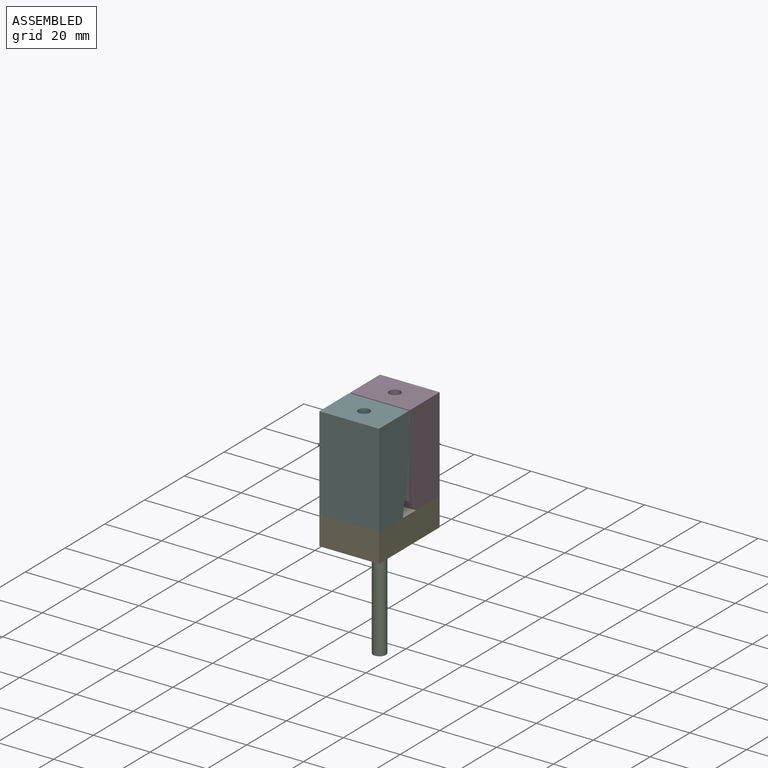
[diagram: assembled view]
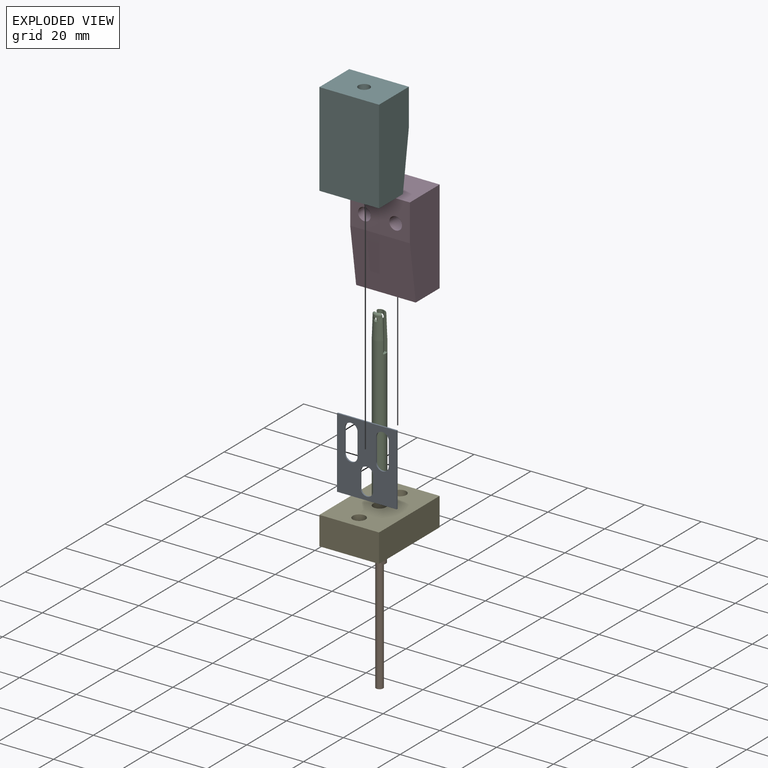
[diagram: exploded view]
GUIDED TOUR — MATED ASSEMBLY (Onshape document f2d12b0c220a4db9c009e8b9, AutoMate assembly f2d12b0c220a4db9c009e8b9_0a5ecf5ad049f95425f89506_d854b8d1486b102a5190bcf5_default)

This assembly has 6 components, labeled P0..P5 below (a component is one placed occurrence of a part; the same part can appear more than once), held together by 5 mates. A mate is a constraint between two components; its type names the relative motion it leaves free:
  FASTENED — locks the two components together rigidly (no relative motion),
  SLIDER — leaves translation along the listed axis free.
Axis/direction vectors are unit vectors and 'through' points are millimeter coordinates, both in the assembly's world frame.

MATES
  1. SLIDER "Gleiter 1": P2 <-> P4, axis (0.000, 0.000, 1.000) through (73.81, 47.07, 35.10) mm
  2. FASTENED "Fest 1": P3 <-> P4, direction (0.000, 0.000, -1.000) through (73.81, 57.32, 23.49) mm
  3. FASTENED "Fest 2": P3 <-> P0, direction (0.000, -1.000, 0.000) through (68.31, 47.32, 48.49) mm
  4. SLIDER "Gleiter 2": P1 <-> P2, axis (0.000, 0.000, -1.000) through (73.81, 47.07, -17.71) mm
  5. FASTENED "Fest 3": P5 <-> P4, direction (0.000, 0.000, -1.000) through (73.81, 36.82, 23.49) mm

ASSEMBLY ORDER
  1. P4 — the base component [order heuristic]
  2. P2 — core [order heuristic]
  3. P1 — core [order heuristic]
  4. P0 [order verified]
  5. P3 [order verified]
  6. P5 [order verified]
Order-tag legend:
  [order verified] — this step's position reverses a verified removal order: the component was checked to insert without passing through the ones already placed.
  [order heuristic] — the first 3 components form the assembly's core: parts whose collision-free extraction could not be verified, listed in mate-graph order.

Of the 6 components, 1 carries the full construction recipe — the FeatureScript program that regenerates the part's solid from scratch; the rest are supplied as boundary geometry only.
Each toured component is shown spotlighted twice — in the assembled view, then in the exploded view, where a leader line traces a displaced component back to its assembled socket (saturated green if recipe-attached, orange if geometry-only; every other component desaturated gray) — followed by its recipe or geometry summary and the mates that hold it.
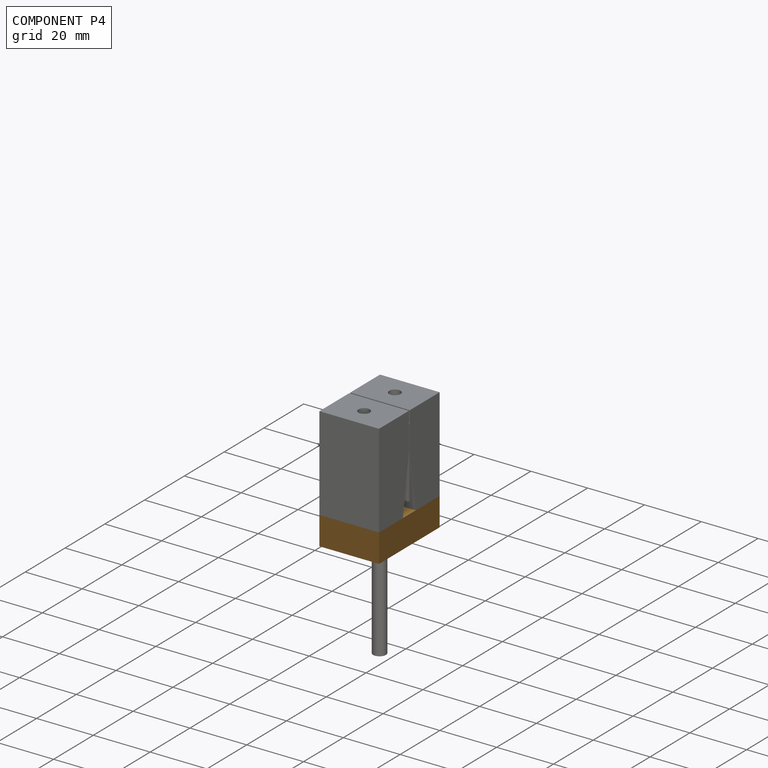
[diagram: component P4 — assembled]
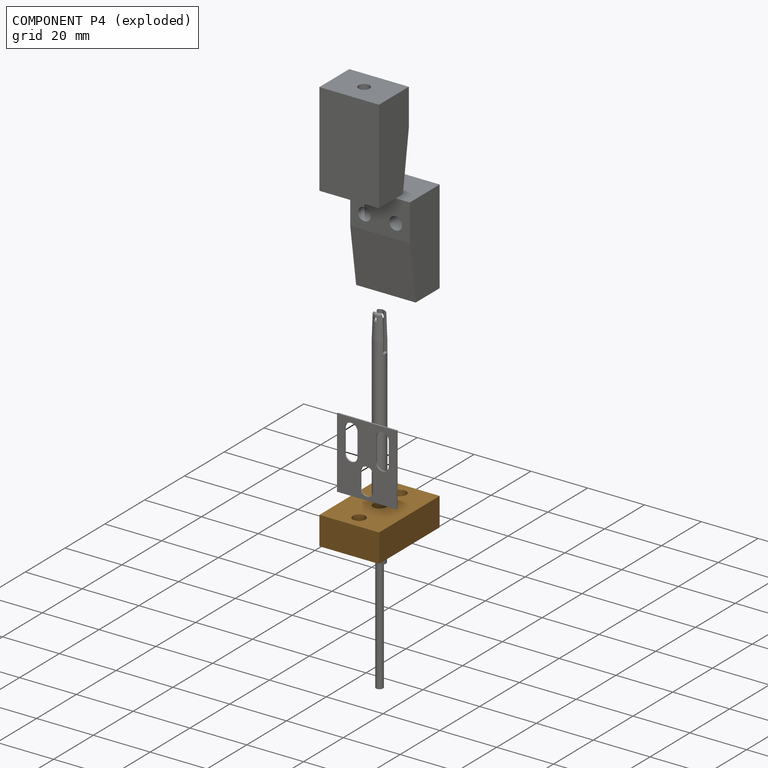
[diagram: component P4 — exploded]
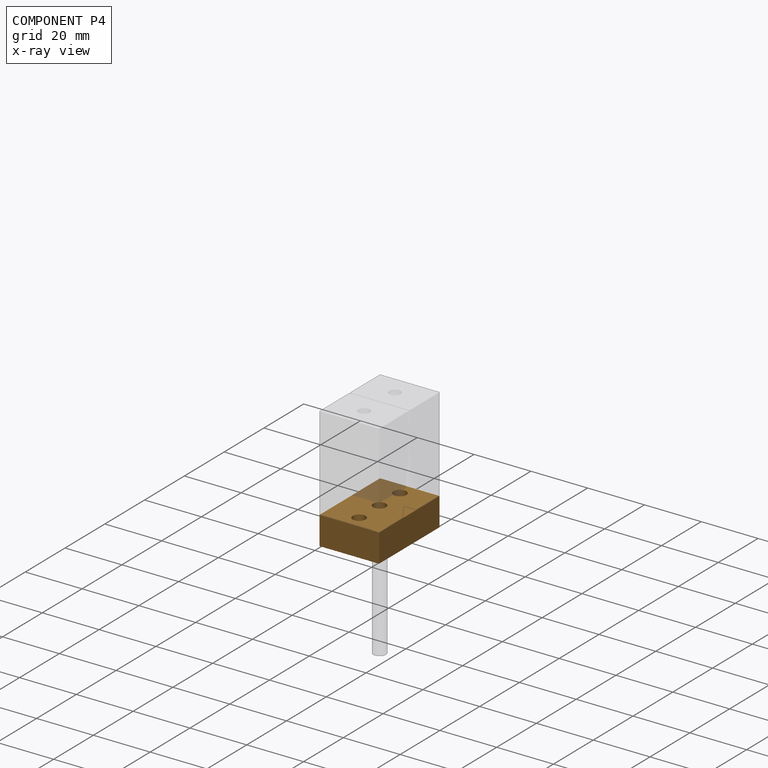
[diagram: component P4 — x-ray view]
COMPONENT P4 — geometry summary (no construction recipe available for this part):
  bounding box: 30.5 x 21.0 x 10.0 mm
  B-rep topology: 1 solid, 14 faces, 58 edges
  volume: 5589 mm^3 (87% of its bounding box)
  symmetry: 2-fold rotationally symmetric about the z axis; mirror-symmetric across its x mid-plane, y mid-plane
Held by: SLIDER mate "Gleiter 1" to P2; FASTENED mate "Fest 1" to P3; FASTENED mate "Fest 3" to P5.
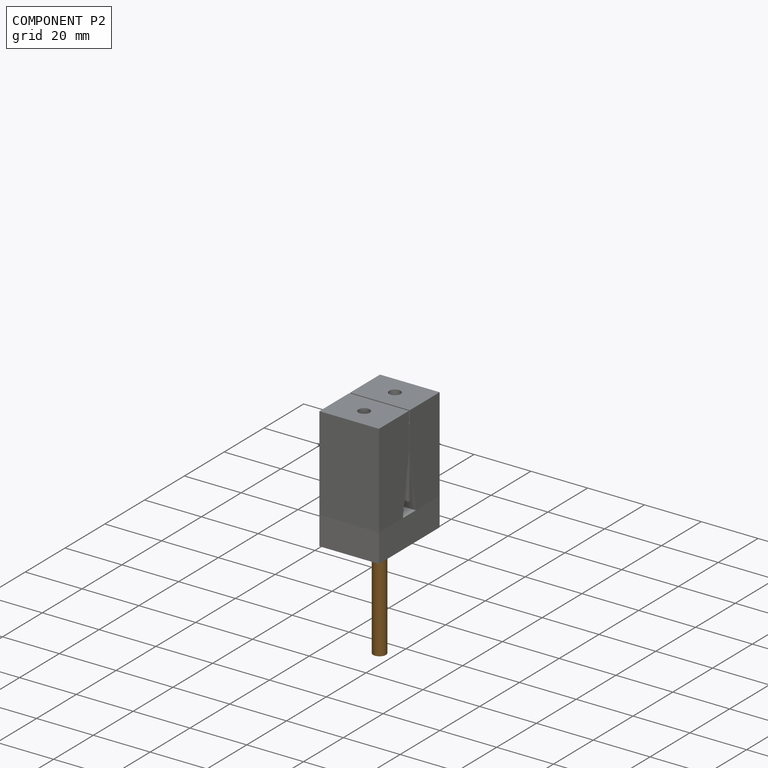
[diagram: component P2 — assembled]
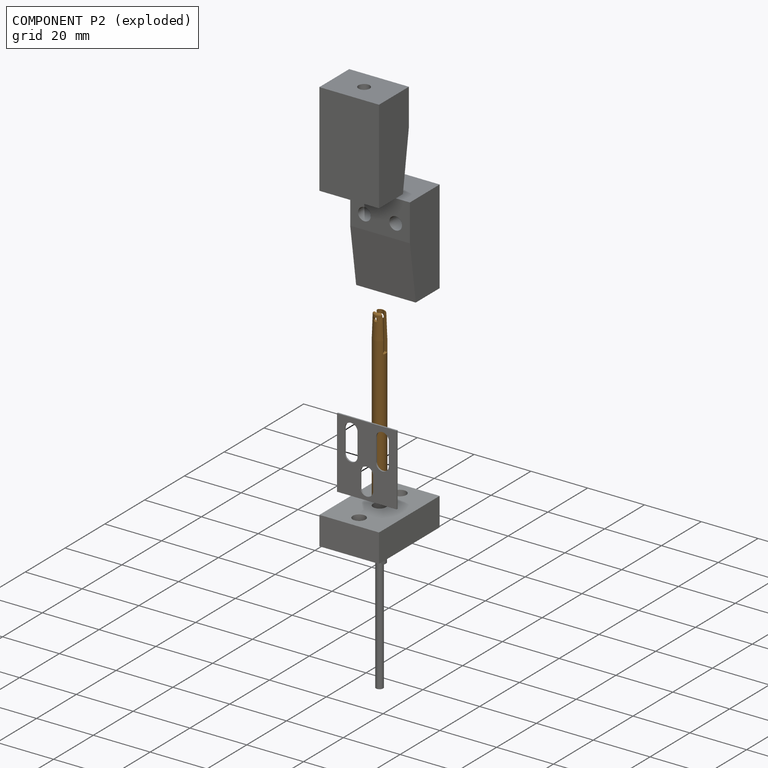
[diagram: component P2 — exploded]
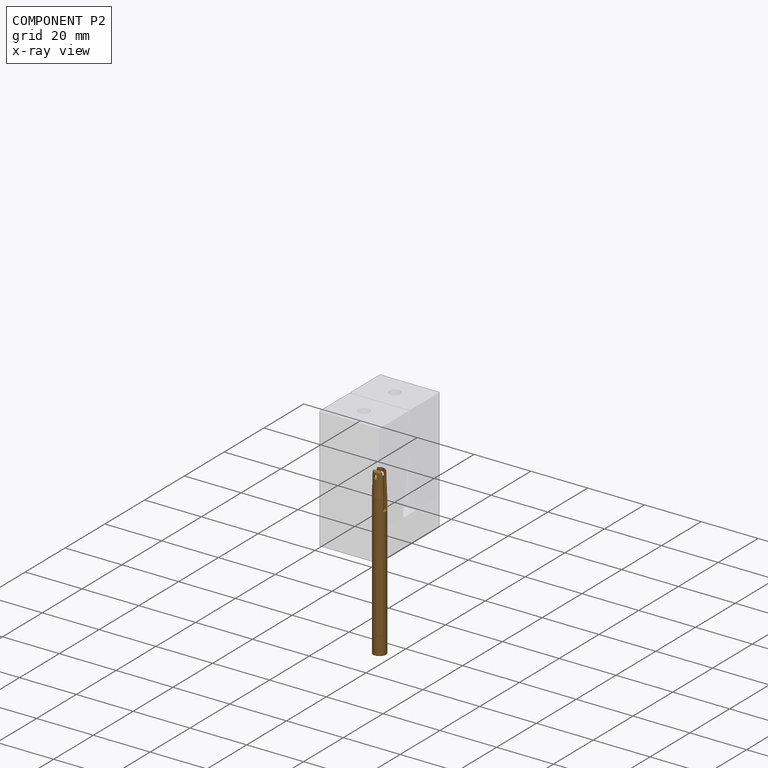
[diagram: component P2 — x-ray view]
COMPONENT P2 — geometry summary (no construction recipe available for this part):
  bounding box: 58.6 x 4.5 x 4.5 mm
  B-rep topology: 1 solid, 17 faces, 96 edges
  volume: 553 mm^3 (46% of its bounding box)
  symmetry: mirror-symmetric across its x mid-plane
Held by: SLIDER mate "Gleiter 1" to P4; SLIDER mate "Gleiter 2" to P1.
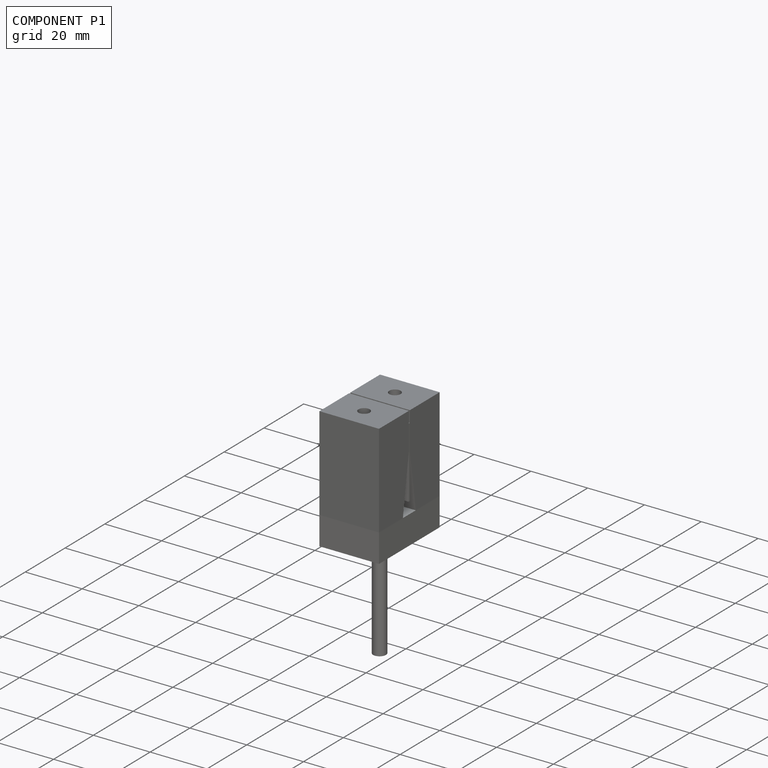
[diagram: component P1 — assembled]
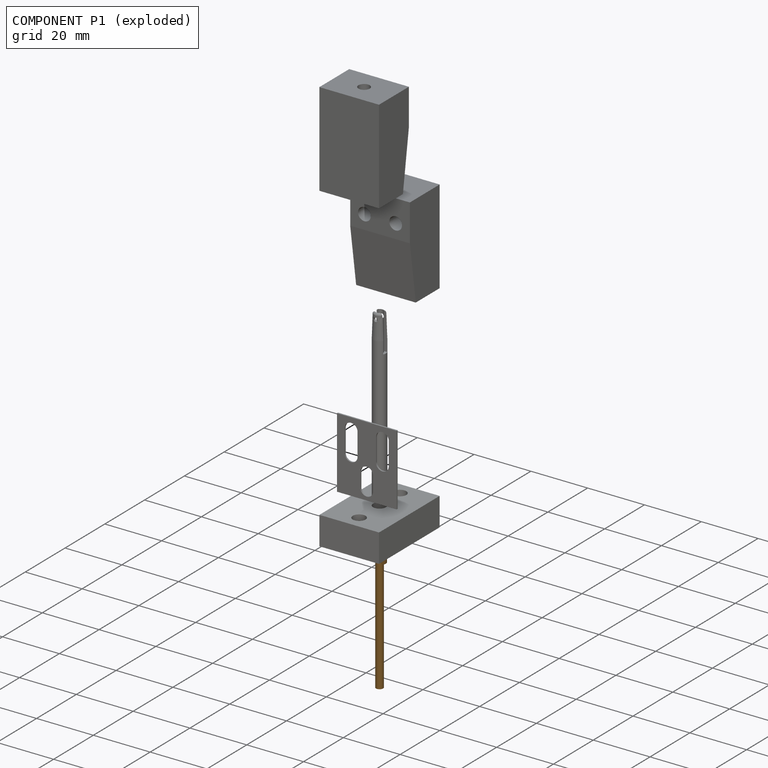
[diagram: component P1 — exploded]
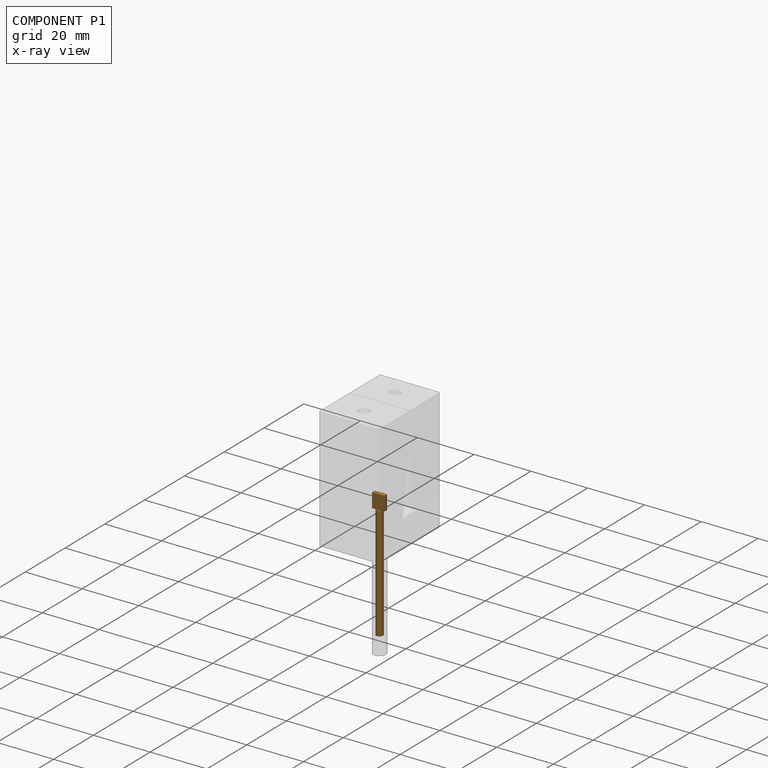
[diagram: component P1 — x-ray view]
COMPONENT P1 — geometry summary (no construction recipe available for this part):
  bounding box: 45.1 x 4.5 x 2.5 mm
  B-rep topology: 1 solid, 11 faces, 46 edges
  volume: 230 mm^3 (45% of its bounding box)
  symmetry: 2-fold rotationally symmetric about the y axis; mirror-symmetric across its x mid-plane, z mid-plane
Held by: SLIDER mate "Gleiter 2" to P2.
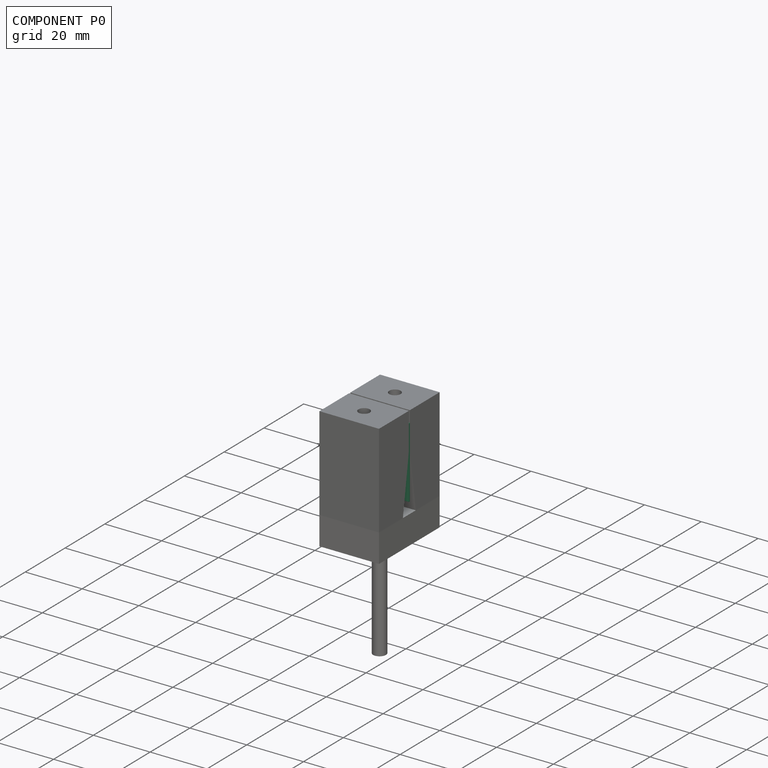
[diagram: component P0 — assembled]
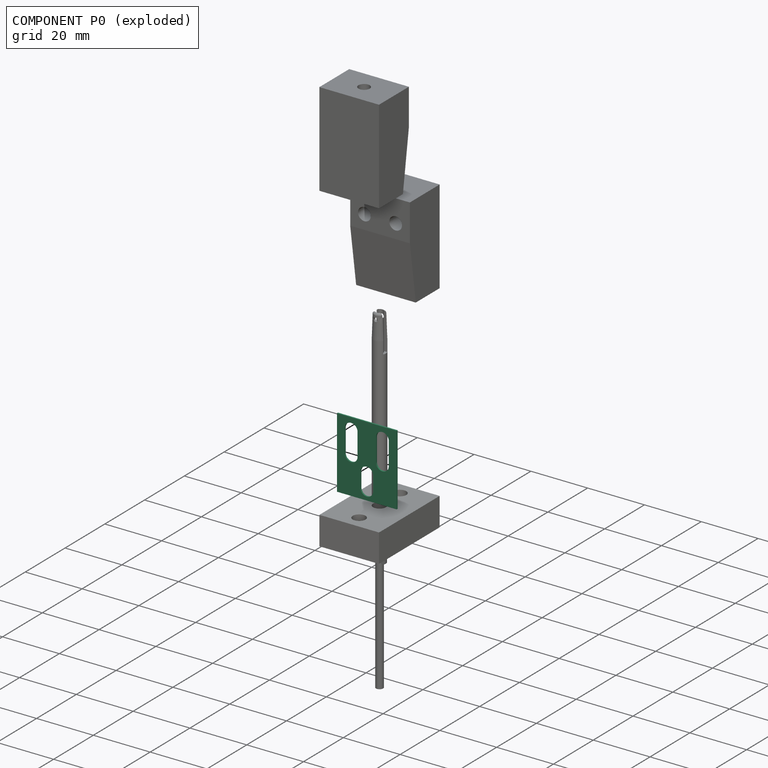
[diagram: component P0 — exploded]
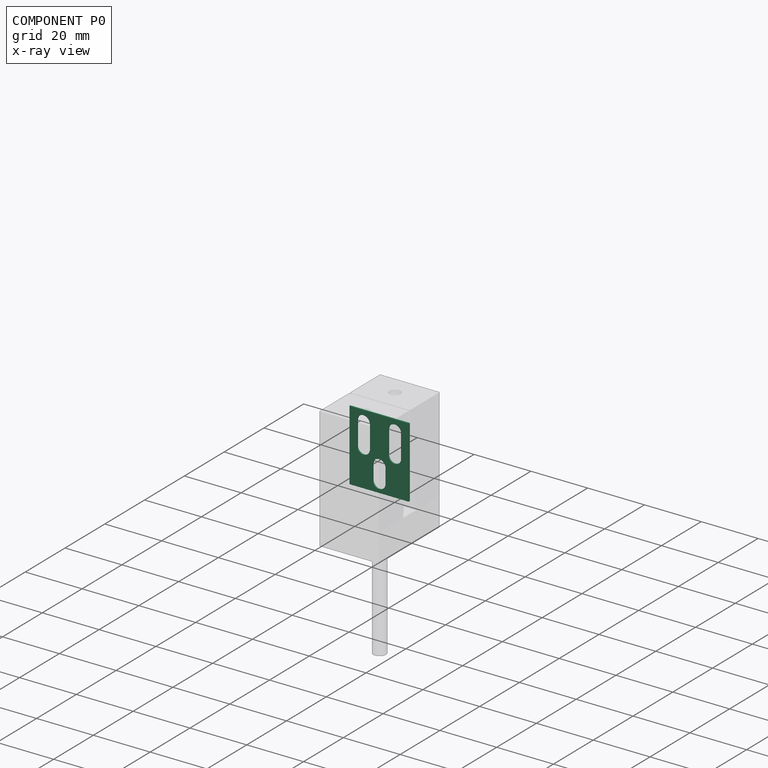
[diagram: component P0 — x-ray view]
COMPONENT P0 — recipe-attached (CADFS 00955422, mesh-verified: the recipe's output STEP matches this component's geometry to below the mesh-comparison resolution (tessellation chordal tolerance ~0.049 mm)).
Held by: FASTENED mate "Fest 2" to P3.
Construction recipe (FeatureScript — the CAD program that rebuilds this solid; sketch coordinates are in the units given by the * unit suffixes, e.g. mm):

FeatureScript 1511;
import(path : "onshape/std/geometry.fs", version : "1511.0");
import(path : "onshape/std/common.fs", version : "1511.0");
const mm = millimeter;
const VERTEX = EntityType.VERTEX;
const EDGE = EntityType.EDGE;
const FACE = EntityType.FACE;
const BODY = EntityType.BODY;
function v(x, y){return vector(x, y);}
function OD(order){return orderDisambiguation(order);}
function OSD(set){return originalSetDisambiguation(set);}
function TD(topology){return topologyDisambiguation(topology);}
function TDD(query){return trueDependencyDisambiguation(query);}
function sQuery(a, b, c) {return sketchEntityQuery(a, b, c);}

annotation { "Feature Type Name" : "Feature", "Feature Type Description" : "" }
export const myFeature = defineFeature(function(context is Context, id is Id, definition is map)
    precondition{}
    {
        {
            var Q0;
            Q0=qCreatedBy(makeId("Front.planeOp"),FACE);
            var sketch = newSketch(context, id + "F0", { "sketchPlane" : qUnion([Q0])});
            skLineSegment(sketch, "E0.bottom", {"start": v(-8.1, -10) * mm, "end": v(12.9, -10) * mm});
            skLineSegment(sketch, "E0.top", {"start": v(-8.1, 15) * mm, "end": v(12.9, 15) * mm});
            skLineSegment(sketch, "E0.left", {"start": v(-8.1, -10) * mm, "end": v(-8.1, 15) * mm});
            skLineSegment(sketch, "E0.right", {"start": v(12.9, -10) * mm, "end": v(12.9, 15) * mm});
            skSolve(sketch);
        }
        {
            var Q0;
            Q0 = qSketchRegion(id + "F0", true);
            extrude(context, id + "F1", {"entities" : qUnion([Q0]), "depth" : 0.5 * mm, "offsetDistance" : 25 * mm});
        }
        {
            var Q0;
            Q0=makeQuery(id+"F1.opExtrude","CAP_FACE",FACE,{"disambiguationData":[OSD([sQuery(id+"F0.wireOp",EDGE,"E0.bottom"),sQuery(id+"F0.wireOp",EDGE,"E0.top"),sQuery(id+"F0.wireOp",EDGE,"E0.left"),sQuery(id+"F0.wireOp",EDGE,"E0.right")])],"isStart":false});
            var sketch = newSketch(context, id + "F2", { "sketchPlane" : qUnion([Q0])});
            skLineSegment(sketch, "E1.left", {"start": v(-0.86, -6) * mm, "end": v(-0.86, 2) * mm});
            skLineSegment(sketch, "E1.right", {"start": v(-5.36, -6) * mm, "end": v(-5.36, 2) * mm});
            skPoint(sketch, "E1.middle", {"position": v(-3.1, -2) * mm});
            skArc(sketch, "E2", {"start": v(-0.86, 2) * mm, "mid": v(-3.1, 4.25) * mm, "end": v(-5.36, 2) * mm});
            skArc(sketch, "E3", {"start": v(-5.36, -6) * mm, "mid": v(-3.1, -8.25) * mm, "end": v(-0.86, -6) * mm});
            skLineSegment(sketch, "E4", {"start": v(2.4, 11.57) * mm, "end": v(2.4, -15.97) * mm});
            skLineSegment(sketch, "E5.MirrorCS", {"start": v(5.64, -6) * mm, "end": v(5.64, 2) * mm});
            skArc(sketch, "E6.MirrorCS", {"start": v(5.64, 2) * mm, "mid": v(7.9, 4.25) * mm, "end": v(10.14, 2) * mm});
            skLineSegment(sketch, "E7.MirrorCS", {"start": v(10.14, -6) * mm, "end": v(10.14, 2) * mm});
            skArc(sketch, "E8.MirrorCS", {"start": v(10.14, -6) * mm, "mid": v(7.9, -8.25) * mm, "end": v(5.64, -6) * mm});
            skSolve(sketch);
        }
        {
            var Q0;
            Q0 = qSketchRegion(id + "F2", true);
            extrude(context, id + "F3", {"entities" : qUnion([Q0]), "operationType" : NewBodyOperationType.REMOVE, "oppositeDirection" : true, "depth" : 25 * mm, "offsetDistance" : 25 * mm});
        }
        {
            var Q0;
            Q0=makeQuery(id+"F1.opExtrude","CAP_FACE",FACE,{"disambiguationData":[OSD([sQuery(id+"F0.wireOp",EDGE,"E0.bottom"),sQuery(id+"F0.wireOp",EDGE,"E0.top"),sQuery(id+"F0.wireOp",EDGE,"E0.left"),sQuery(id+"F0.wireOp",EDGE,"E0.right")])],"isStart":false});
            var sketch = newSketch(context, id + "F4", { "sketchPlane" : qUnion([Q0])});
            skLineSegment(sketch, "E9.bottom", {"start": v(4.64, 11.5) * mm, "end": v(0.14, 11.5) * mm});
            skLineSegment(sketch, "E9.top", {"start": v(4.64, 6.5) * mm, "end": v(0.14, 6.5) * mm});
            skLineSegment(sketch, "E9.left", {"start": v(4.64, 11.5) * mm, "end": v(4.64, 6.5) * mm});
            skLineSegment(sketch, "E9.right", {"start": v(0.14, 11.5) * mm, "end": v(0.14, 6.5) * mm});
            skPoint(sketch, "E9.middle", {"position": v(2.4, 9) * mm});
            skArc(sketch, "E10", {"start": v(4.64, 11.5) * mm, "mid": v(2.4, 13.75) * mm, "end": v(0.14, 11.5) * mm});
            skArc(sketch, "E11", {"start": v(0.14, 6.5) * mm, "mid": v(2.4, 4.25) * mm, "end": v(4.64, 6.5) * mm});
            skSolve(sketch);
        }
        {
            var Q0;
            Q0 = qSketchRegion(id + "F4", true);
            extrude(context, id + "F5", {"entities" : qUnion([Q0]), "operationType" : NewBodyOperationType.REMOVE, "oppositeDirection" : true, "depth" : 25 * mm, "offsetDistance" : 25 * mm});
        }
    });
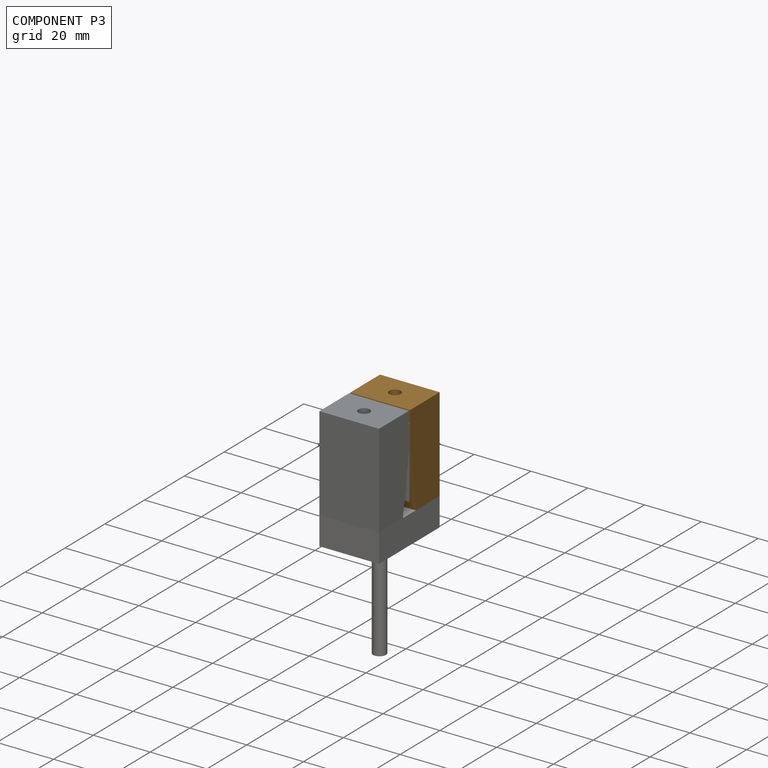
[diagram: component P3 — assembled]
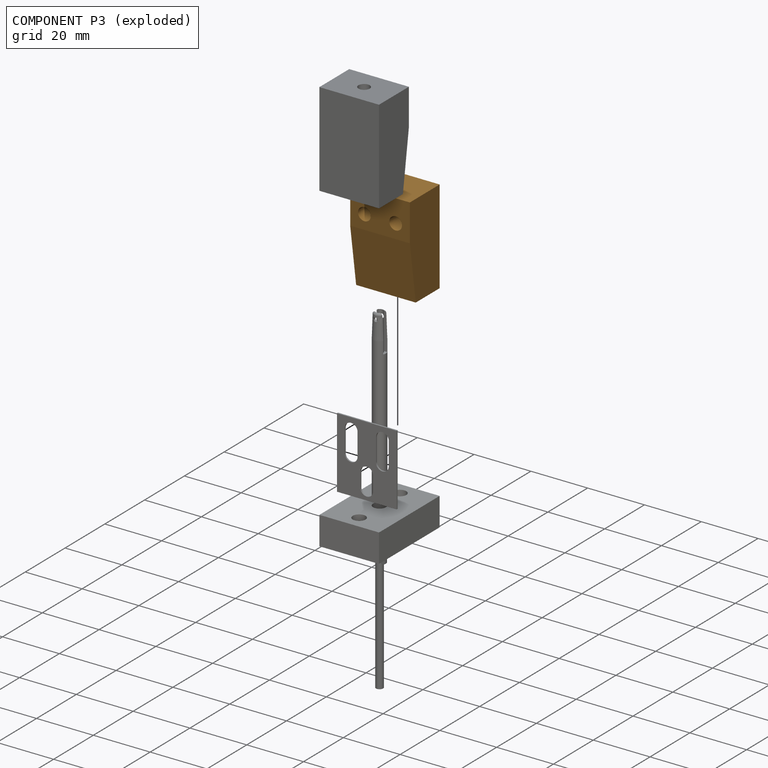
[diagram: component P3 — exploded]
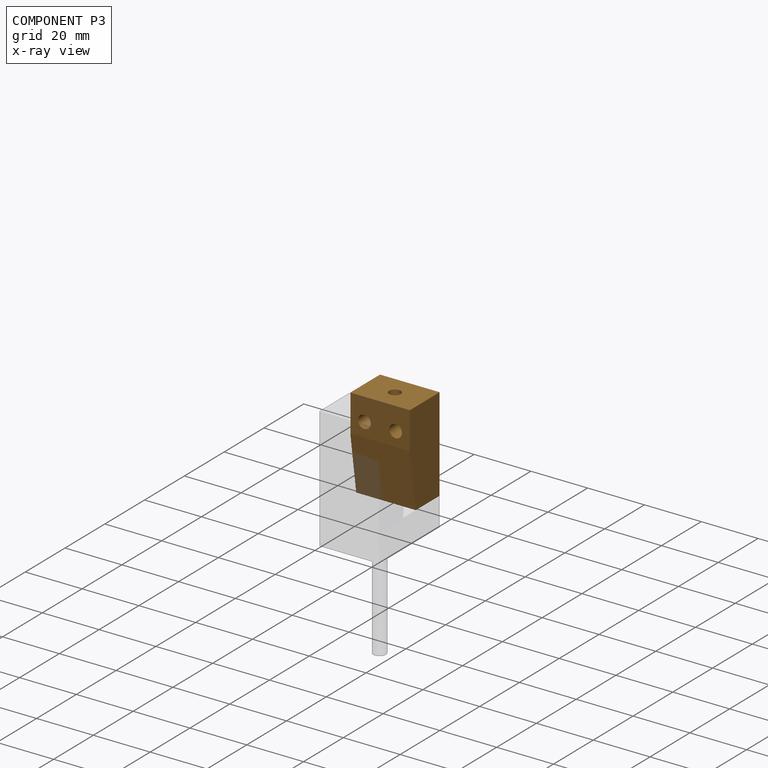
[diagram: component P3 — x-ray view]
COMPONENT P3 — geometry summary (no construction recipe available for this part):
  bounding box: 33.0 x 21.0 x 15.0 mm
  B-rep topology: 1 solid, 17 faces, 72 edges
  volume: 8703 mm^3 (84% of its bounding box)
  symmetry: mirror-symmetric across its y mid-plane
Held by: FASTENED mate "Fest 1" to P4; FASTENED mate "Fest 2" to P0.
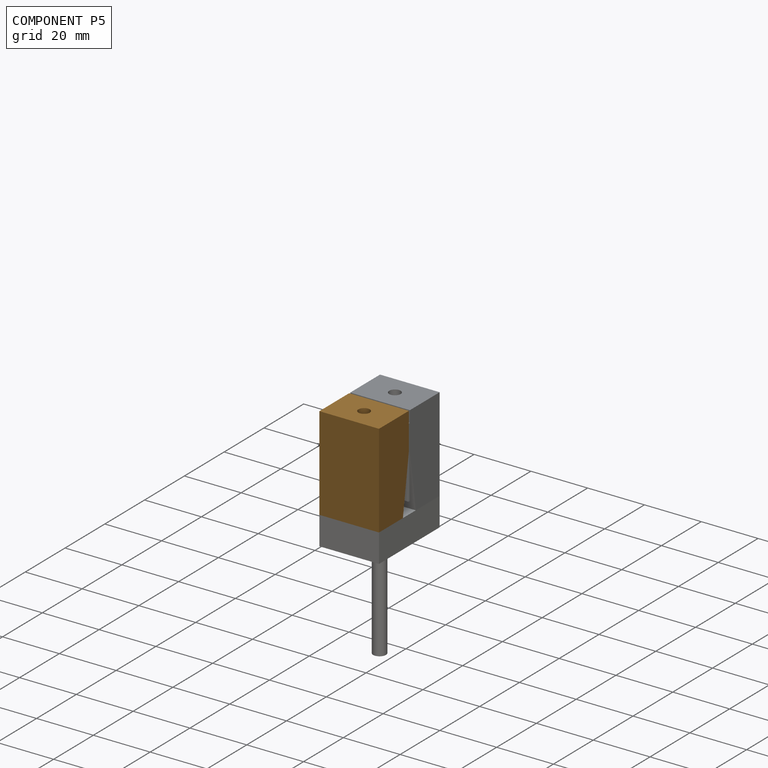
[diagram: component P5 — assembled]
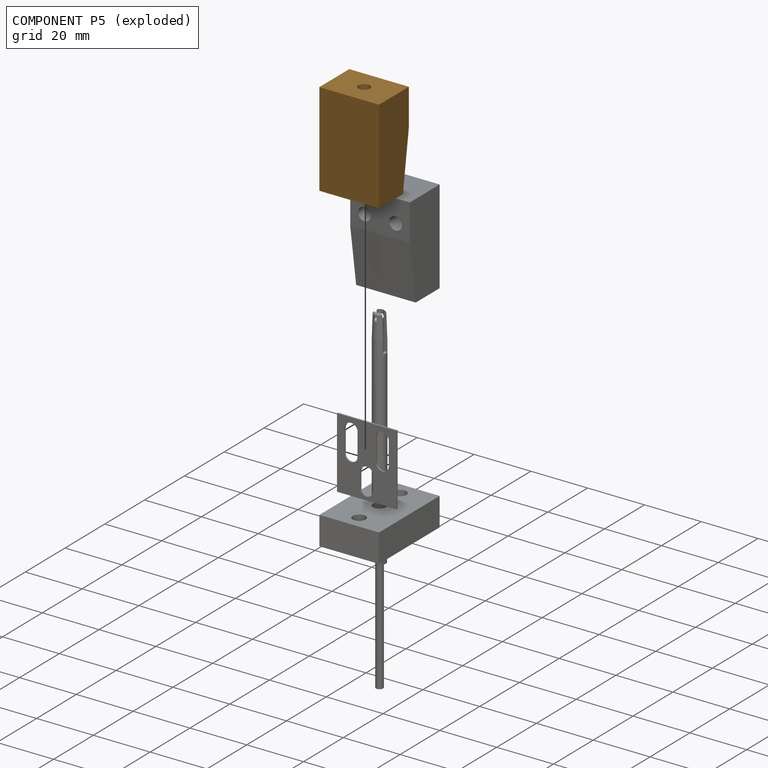
[diagram: component P5 — exploded]
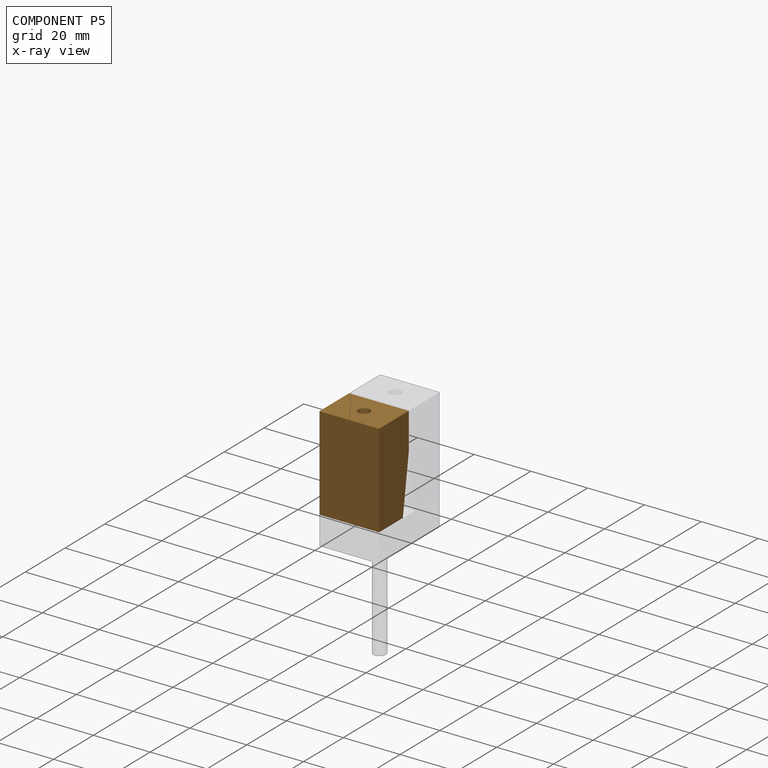
[diagram: component P5 — x-ray view]
COMPONENT P5 — geometry summary (no construction recipe available for this part):
  bounding box: 33.0 x 21.0 x 15.0 mm
  B-rep topology: 1 solid, 15 faces, 60 edges
  volume: 9165 mm^3 (88% of its bounding box)
  symmetry: mirror-symmetric across its y mid-plane
Held by: FASTENED mate "Fest 3" to P4.
PROVENANCE & LICENSES
Assembly (occurrences, transforms, mates, per-part STEP geometry): AutoMate dataset, Zenodo record 7776208, CC0.
Construction recipes: CADFS (HuggingFace VladPyatov/CADFS, CC-BY-4.0, layered over the ABC dataset), FeatureScript reconstruction programs keyed by ABC model id.
Join: ABC meta listings map ABC model id -> Onshape documentId; within a shared document, parts are matched by geometric signature (bounding-box dims + volume at 0.1% relative tolerance, exact B-rep face/solid counts).
Verification: 1 of this assembly's 6 components carries a recipe attachment, and every attachment is mesh-verified: the CADFS STEP and the AutoMate member STEP were compared as meshes in their shared local frame (symmetric sampled-point-to-mesh distance); worst across the 1 attachment: below the mesh-comparison resolution (tessellation chordal tolerance ~0.049 mm) on a 33 mm part.
Renders: orthographic iso camera (az 35 / el 25); the floor grid conveys scale (grid pitch printed in each image; no ruler). In the exploded view each component is displaced by its stored offset vector: the offsets alone carry the explosion direction (mate normal/axis signs are not orientation cues and do not encode it), and separation distances are assigned per mate-chain, not proportionally to assembly-order depth.
